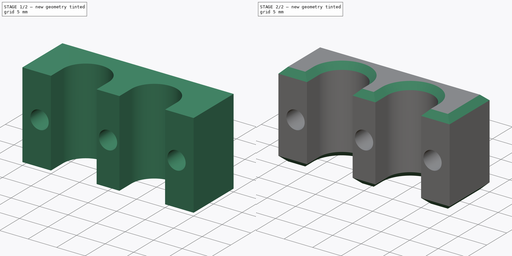
[diagram: build sequence overview — one tinted view per stage of 2, left to right]
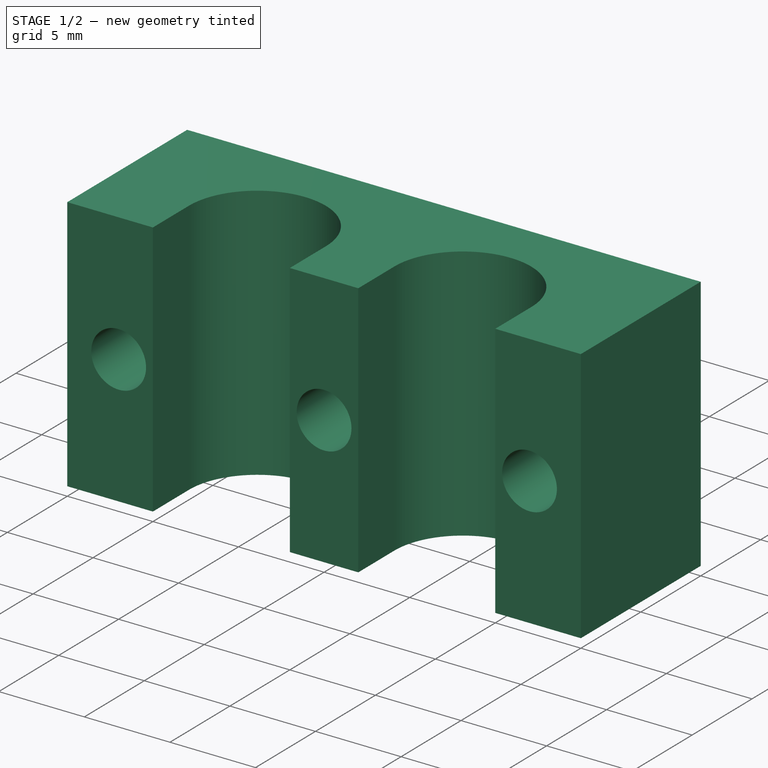
[diagram: stage 1 of 2 — iso view after this stage's code; geometry added in this stage tinted green]
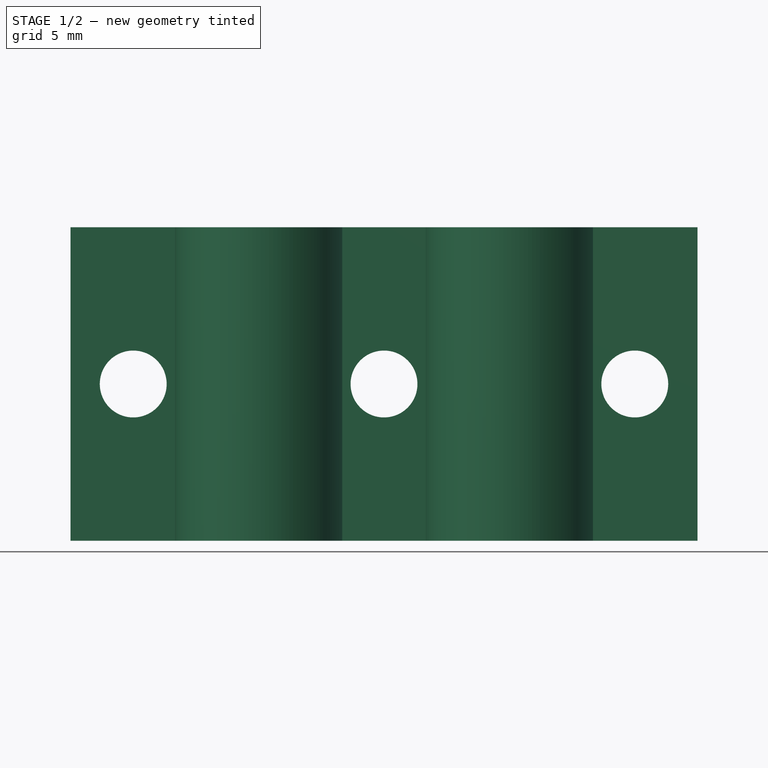
[diagram: stage 1 of 2 — front view after this stage's code; geometry added in this stage tinted green]
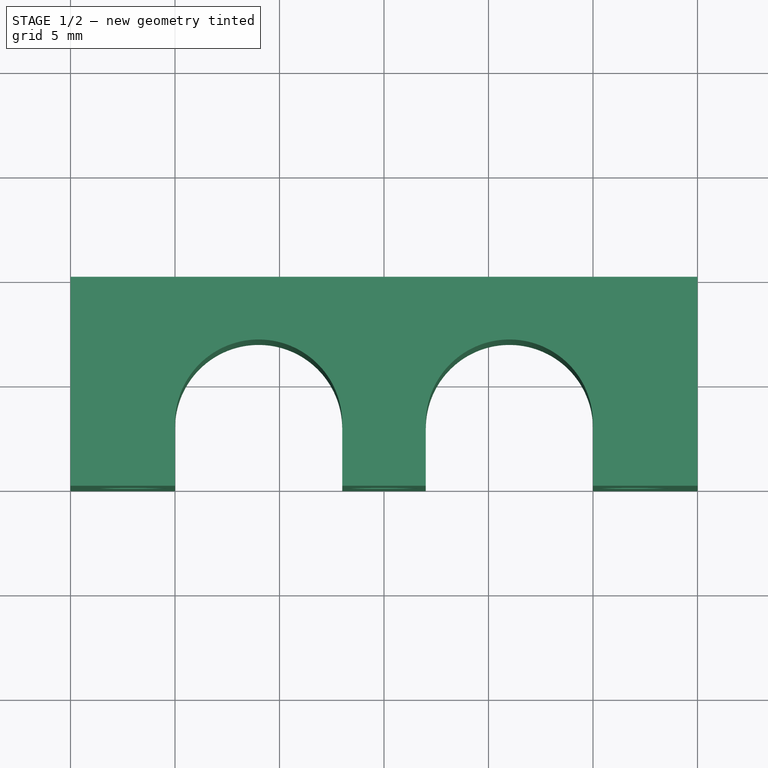
[diagram: stage 1 of 2 — top view after this stage's code; geometry added in this stage tinted green]
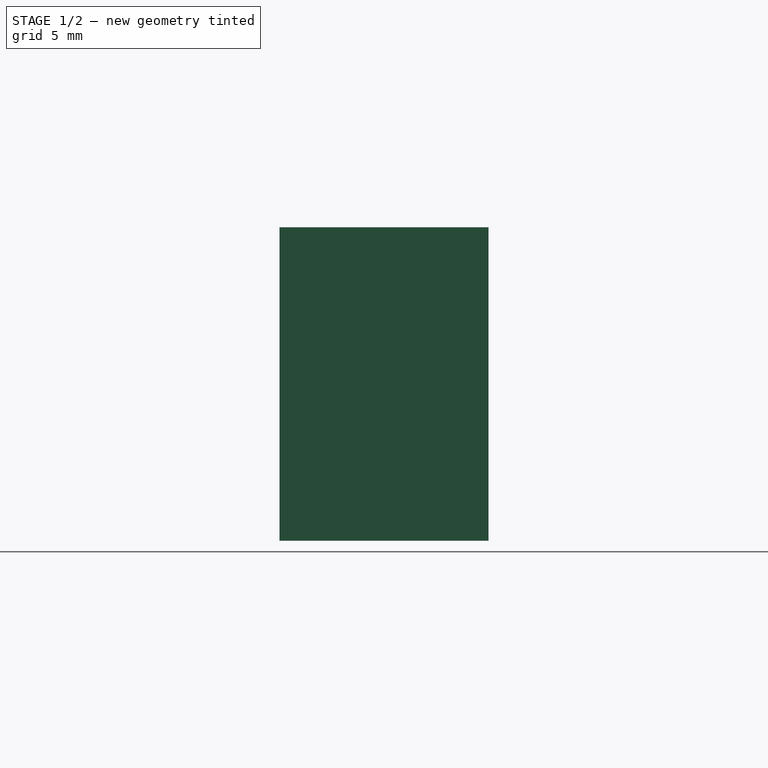
[diagram: stage 1 of 2 — right view after this stage's code; geometry added in this stage tinted green]
FCSTD DOCUMENT  (FreeCAD 0.16R6707 (Git))
Label: motor_X_cables_clip
License: CreativeCommons Attribution-NonCommercial-ShareAlike
LicenseURL: http://creativecommons.org/licenses/by-nc-sa/4.0/
objects: Sketcher::SketchObject×2, PartDesign::Pad×1, PartDesign::Pocket×1, PartDesign::Chamfer×1
note: 7 computed .brp shape members not serialized (recipe doc carries the construction recipe); baked Part::Feature solids carry a one-line shape summary decoded from their .brp

FEATURE [Sketcher::SketchObject] Sketch
  sketch-geometry (12):
    g0: ArcOfCircle CenterX=-6 CenterY=3 CenterZ=0 NormalX=0 NormalY=0 NormalZ=1 Radius=4 StartAngle=0 EndAngle=3.14159
    g1: ArcOfCircle CenterX=6 CenterY=3 CenterZ=0 NormalX=0 NormalY=0 NormalZ=1 Radius=4 StartAngle=0 EndAngle=3.14159
    g2: LineSegment StartX=-2 StartY=3 StartZ=0 EndX=-2 EndY=0 EndZ=0
    g3: LineSegment StartX=-10 StartY=3 StartZ=0 EndX=-10 EndY=0 EndZ=0
    g4: LineSegment StartX=-2 StartY=0 StartZ=0 EndX=2 EndY=0 EndZ=0
    g5: LineSegment StartX=2 StartY=0 StartZ=0 EndX=2 EndY=3 EndZ=0
    g6: LineSegment StartX=10 StartY=3 StartZ=0 EndX=10 EndY=0 EndZ=0
    g7: LineSegment StartX=-15 StartY=0 StartZ=0 EndX=-15 EndY=10 EndZ=0
    g8: LineSegment StartX=-10 StartY=0 StartZ=0 EndX=-15 EndY=0 EndZ=0
    g9: LineSegment StartX=10 StartY=0 StartZ=0 EndX=15 EndY=0 EndZ=0
    g10: LineSegment StartX=15 StartY=0 StartZ=0 EndX=15 EndY=10 EndZ=0
    g11: LineSegment StartX=15 StartY=10 StartZ=0 EndX=-15 EndY=10 EndZ=0
  constraints (38):
    c: Coincident(g2,g0)
    c: PointOnObject(g2,g-1)
    c: Vertical(g2)
    c: Coincident(g3,g0)
    c: PointOnObject(g3,g-1)
    c: Vertical(g3)
    c: Coincident(g4,g2)
    c: Horizontal(g4)
    c: Coincident(g5,g4)
    c: Coincident(g5,g1)
    c: Vertical(g5)
    c: Coincident(g6,g1)
    c: PointOnObject(g6,g-1)
    c: Vertical(g6)
    c: PointOnObject(g7,g-1)
    c: Vertical(g7)
    c: Coincident(g8,g3)
    c: Coincident(g8,g7)
    c: Coincident(g9,g6)
    c: Horizontal(g9)
    c: Coincident(g10,g9)
    c: Vertical(g10)
    c: Coincident(g11,g10)
    c: Coincident(g11,g7)
    c: Horizontal(g11)
    c: Equal(g1,g0)
    c: Equal(g3,g2)
    c: Equal(g2,g5)
    c: Equal(g5,g6)
    c: DistanceY(g5,g5) = 3
    c: DistanceY(g-1,g0) = 3
    c: DistanceY(g-1,g1) = 3
    c: DistanceX(g4,g4) = 4
    c: Radius(g0) = 4
    c: Symmetric(g2,g4,g-2)
    c: Symmetric(g7,g10,g-2)
    c: DistanceY(g7,g7) = 10
    c: DistanceX(g7,g-1) = 15
FEATURE [PartDesign::Pad] Pad
  Length = 15
  Length2 = 100
  Sketch = -> Sketch
  Type = 0
FEATURE [Sketcher::SketchObject] Sketch001
  Placement = pos=(0,0,0) rot=(1,0,0;1.5708rad)
  Support = -> Pad [Face12]
  sketch-geometry (4):
    g0: Circle CenterX=0 CenterY=7.5 CenterZ=0 NormalX=0 NormalY=0 NormalZ=1 Radius=1.6
    g1: Circle CenterX=-12 CenterY=7.5 CenterZ=0 NormalX=0 NormalY=0 NormalZ=1 Radius=1.6
    g2: Circle CenterX=12 CenterY=7.5 CenterZ=0 NormalX=0 NormalY=0 NormalZ=1 Radius=1.6
    g3: LineSegment [constr] StartX=-12 StartY=7.5 StartZ=0 EndX=0 EndY=7.5 EndZ=0
  constraints (10):
    c: PointOnObject(g0,g-2)
    c: Coincident(g3,g1)
    c: Coincident(g3,g0)
    c: Horizontal(g3)
    c: Symmetric(g1,g2,g-2)
    c: Radius(g1) = 1.6
    c: Equal(g1,g0)
    c: Equal(g1,g2)
    c: DistanceX(g3,g3) = 12
    c: DistanceY(g-1,g0) = 7.5
FEATURE [PartDesign::Pocket] Pocket
  Length = 5
  Sketch = -> Sketch001
  Type = 1
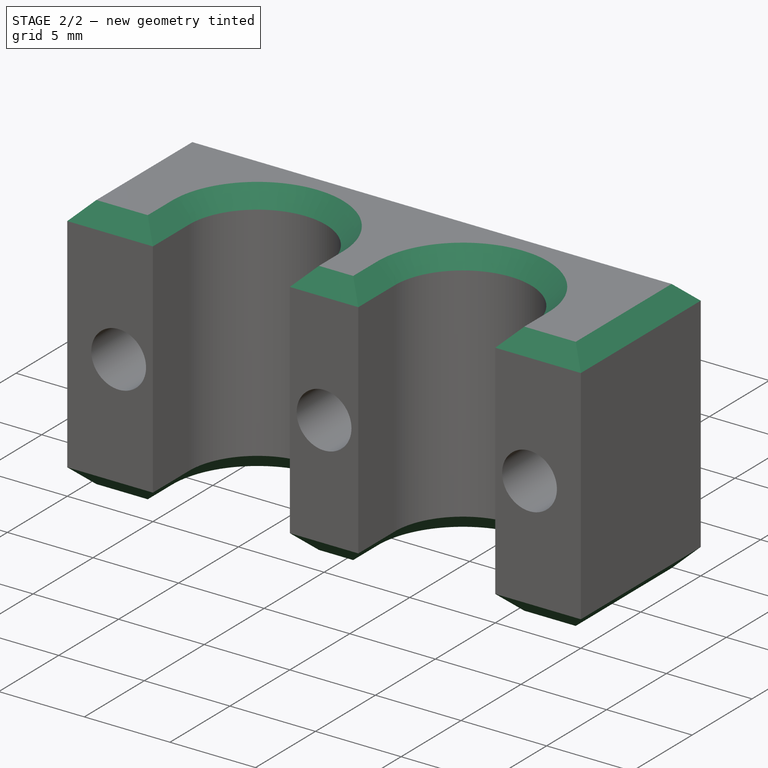
[diagram: stage 2 of 2 — iso view after this stage's code; geometry added in this stage tinted green]
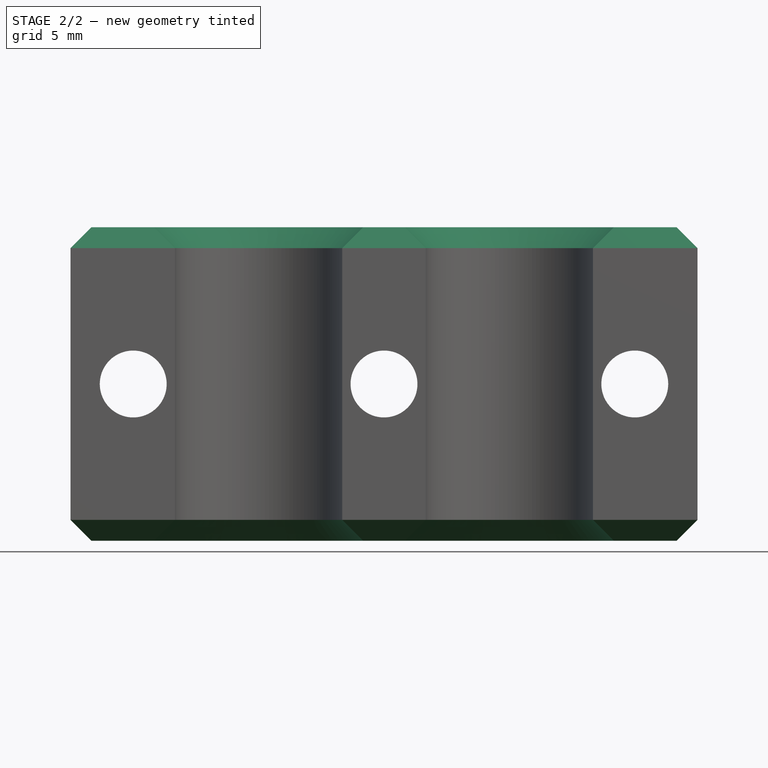
[diagram: stage 2 of 2 — front view after this stage's code; geometry added in this stage tinted green]
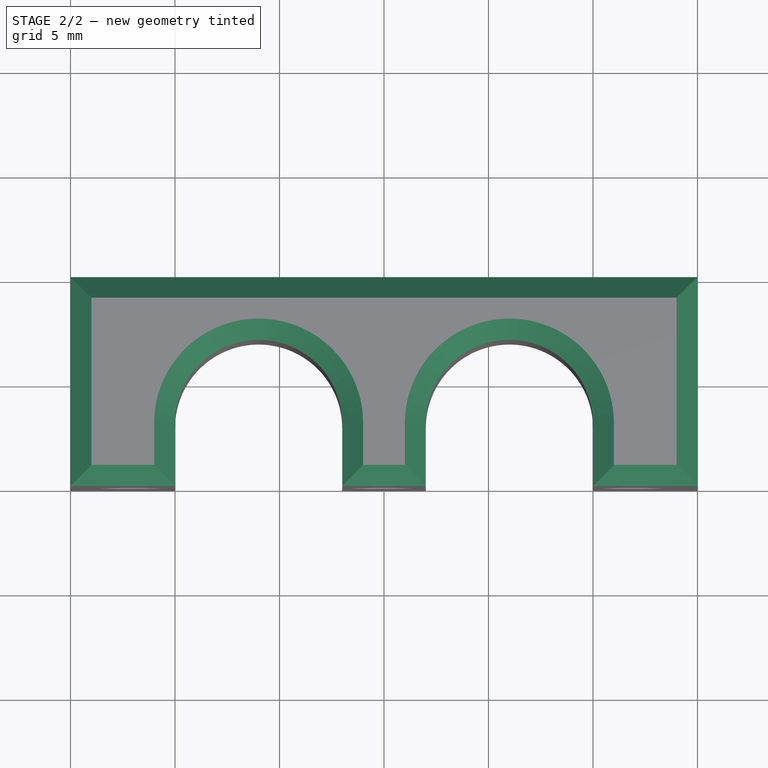
[diagram: stage 2 of 2 — top view after this stage's code; geometry added in this stage tinted green]
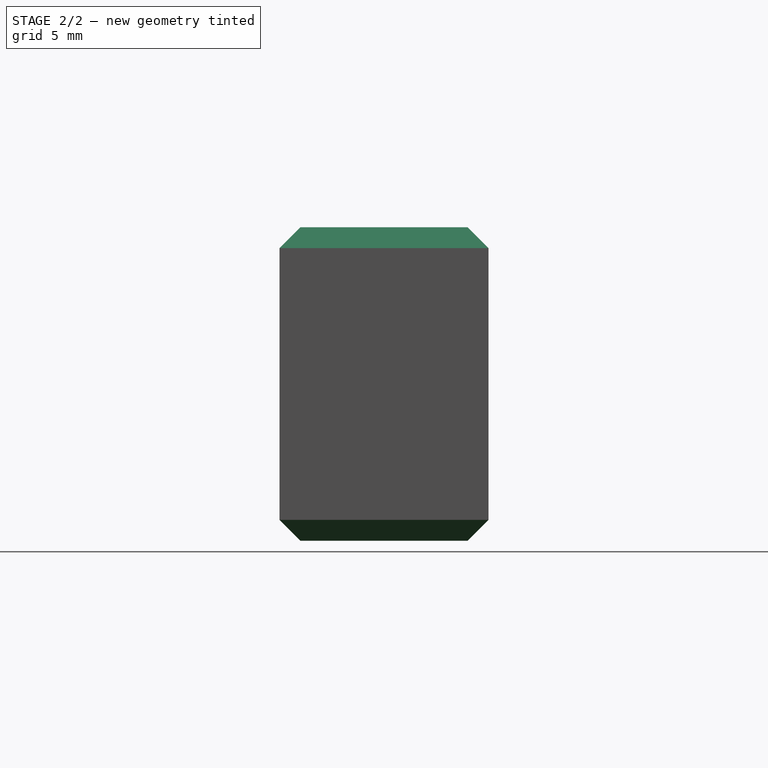
[diagram: stage 2 of 2 — right view after this stage's code; geometry added in this stage tinted green]
FEATURE [PartDesign::Chamfer] Chamfer
  Base = -> Pocket [Edge4,Edge7,Edge21,Edge22,Edge23,Edge24,Edge25,Edge26,Edge27,Edge28,Edge29,Edge9,Edge3,Edge6,Edge12,Edge13,Edge14,Edge15,Edge16,Edge17,Edge18,Edge19,Edge20,Edge8]
  Size = 1
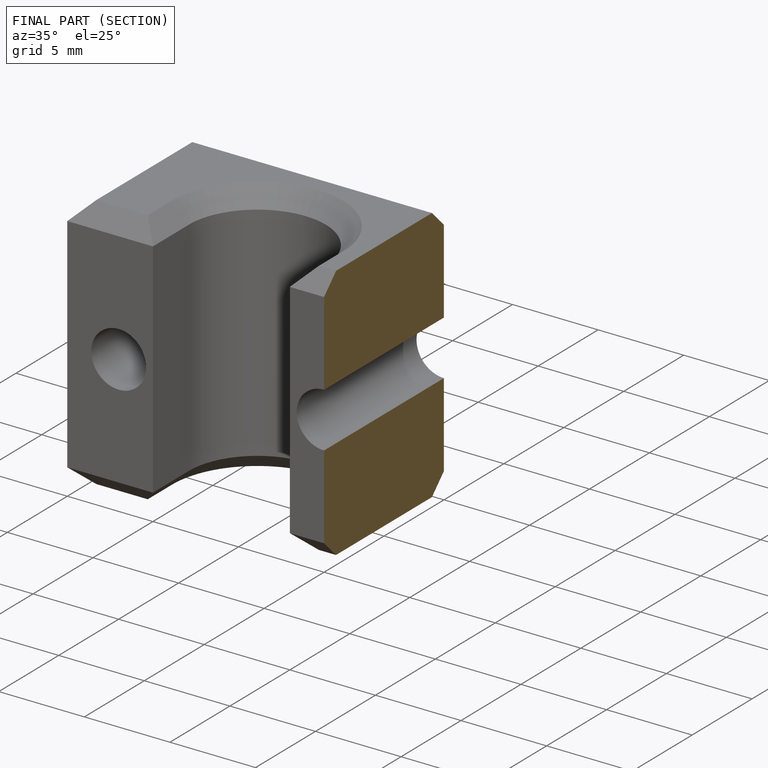
[diagram: finished part — half-section view (interior)]
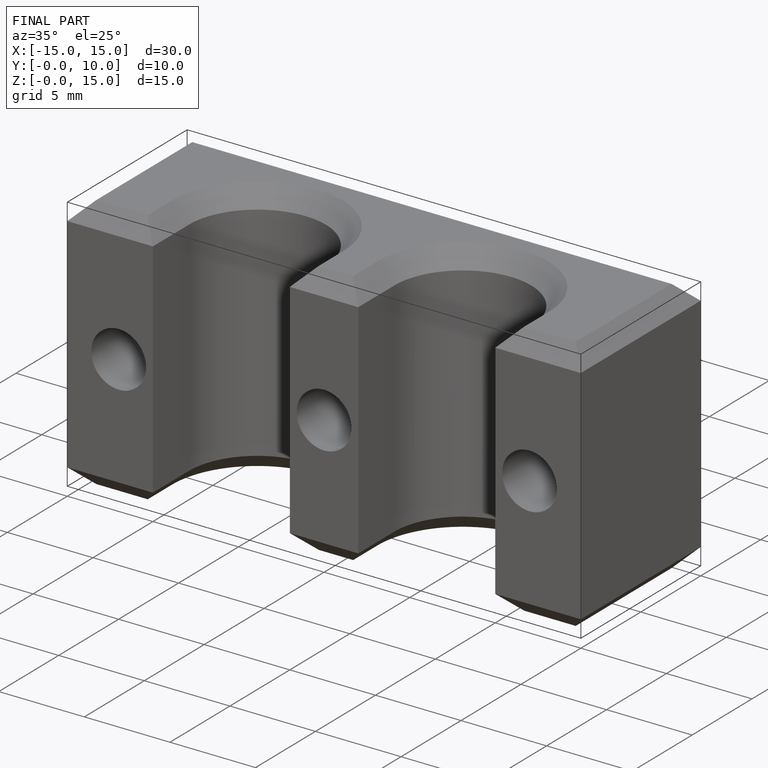
[diagram: finished part — iso view with bounding-box wireframe]
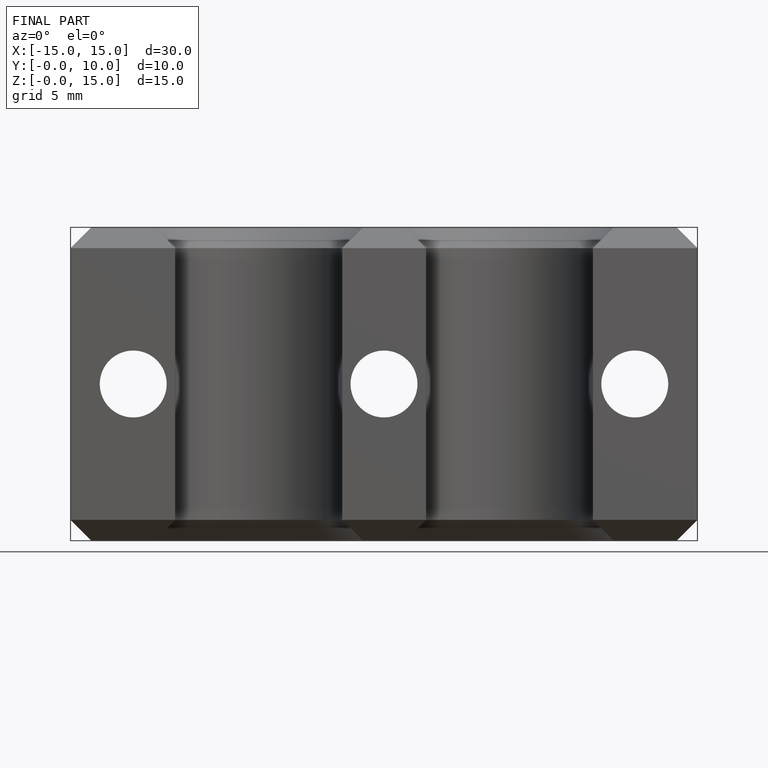
[diagram: finished part — front view with bounding-box wireframe]
